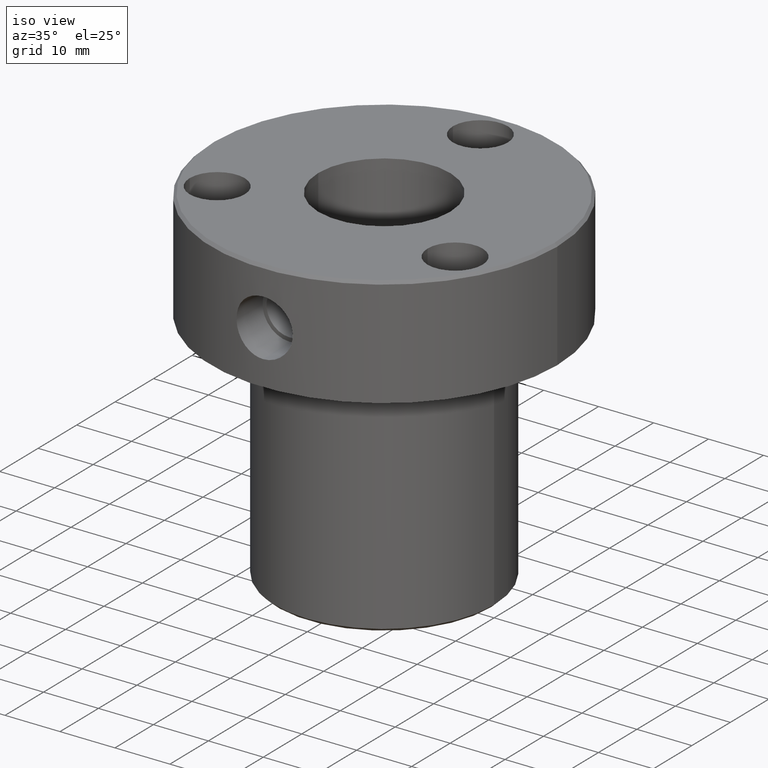
[diagram: clean part render]
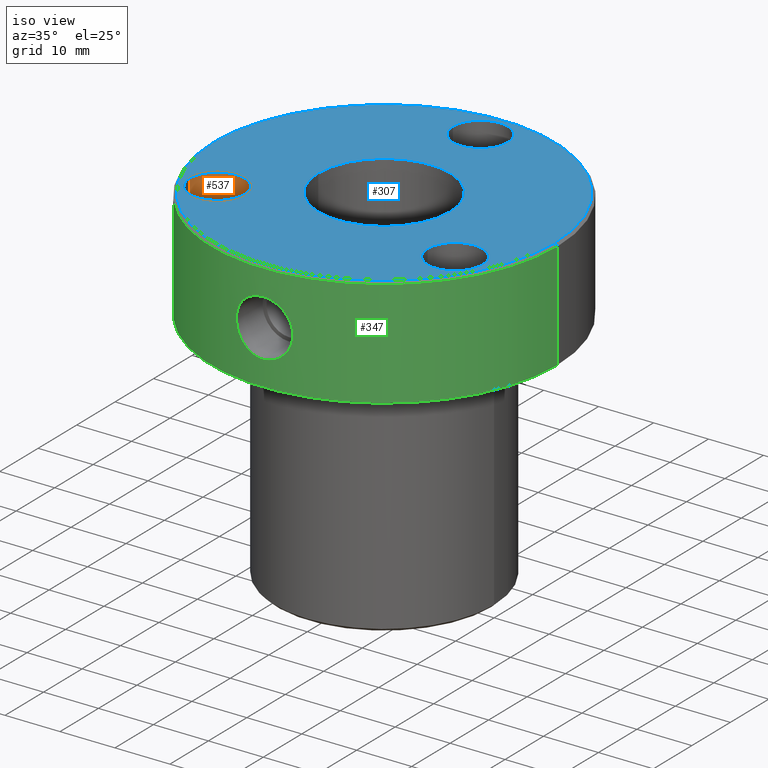
[diagram: same view with three faces highlighted in distinct colors, each labeled with its STEP entity id]
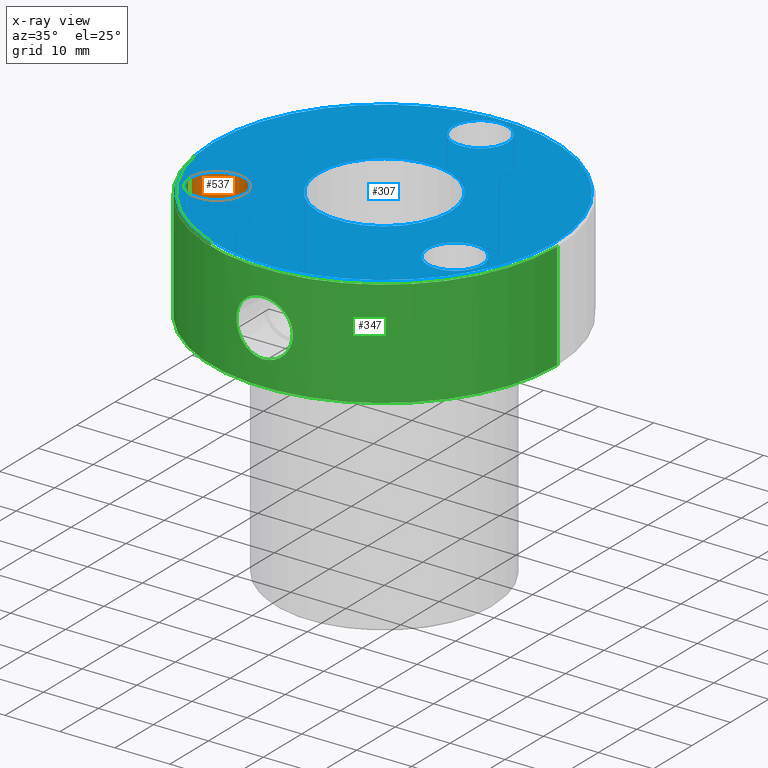
[diagram: x-ray of the same camera — body ghosted, the three highlighted faces saturated]
A machine part, iso view with three faces highlighted in distinct colors.
The next image is the same camera in x-ray (body ghosted, the three faces saturated) — at least one of them is partly hidden behind the body in this view.
Their STEP definitions:

[orange] entity #537 — the highlighted cylindrical surface (edge-blend (fillet) strip) has radius 5 mm, axis along (-0, -0, 1).
#18 = EDGE_CURVE ( 'NONE', #1236, #1199, #418, .T. ) ;
#92 = VECTOR ( 'NONE', #219, 1000.000000000000000 ) ;
#153 = CYLINDRICAL_SURFACE ( 'NONE', #1053, 4.999999999999997335 ) ;
#183 = CARTESIAN_POINT ( 'NONE',  ( -26.65063509461099756, -12.49999999999995381, -5.400000000000000355 ) ) ;
#193 = CARTESIAN_POINT ( 'NONE',  ( -21.65063509461100111, -12.49999999999995381, 0.000000000000000000 ) ) ;
#219 = DIRECTION ( 'NONE',  ( -0.000000000000000000, -0.000000000000000000, 1.000000000000000000 ) ) ;
#257 = CARTESIAN_POINT ( 'NONE',  ( -21.65063509461100111, -12.49999999999995381, -5.400000000000000355 ) ) ;
#296 = VERTEX_POINT ( 'NONE', #376 ) ;
#316 = DIRECTION ( 'NONE',  ( -0.000000000000000000, -0.000000000000000000, 1.000000000000000000 ) ) ;
#319 = VECTOR ( 'NONE', #420, 1000.000000000000000 ) ;
#341 = CIRCLE ( 'NONE', #869, 5.000000000000000888 ) ;
#376 = CARTESIAN_POINT ( 'NONE',  ( -26.65063509461100111, -12.49999999999995381, 0.000000000000000000 ) ) ;
#418 = CIRCLE ( 'NONE', #1177, 4.999999999999997335 ) ;
#420 = DIRECTION ( 'NONE',  ( -0.000000000000000000, -0.000000000000000000, 1.000000000000000000 ) ) ;
#537 = ADVANCED_FACE ( 'NONE', ( #902 ), #153, .F. ) ;
#563 = VERTEX_POINT ( 'NONE', #1018 ) ;
#577 = DIRECTION ( 'NONE',  ( 1.000000000000000000, 0.000000000000000000, 0.000000000000000000 ) ) ;
#598 = EDGE_CURVE ( 'NONE', #1199, #296, #719, .T. ) ;
#612 = CARTESIAN_POINT ( 'NONE',  ( -16.65063509461100466, -12.49999999999995381, -5.400000000000000355 ) ) ;
#643 = ORIENTED_EDGE ( 'NONE', *, *, #18, .F. ) ;
#705 = DIRECTION ( 'NONE',  ( 1.000000000000000000, 0.000000000000000000, 0.000000000000000000 ) ) ;
#719 = LINE ( 'NONE', #903, #319 ) ;
#869 = AXIS2_PLACEMENT_3D ( 'NONE', #193, #960, #577 ) ;
#886 = LINE ( 'NONE', #1182, #92 ) ;
#902 = FACE_OUTER_BOUND ( 'NONE', #1141, .T. ) ;
#903 = CARTESIAN_POINT ( 'NONE',  ( -26.65063509461099756, -12.49999999999995381, 0.000000000000000000 ) ) ;
#912 = CARTESIAN_POINT ( 'NONE',  ( -21.65063509461100111, -12.49999999999995381, 0.000000000000000000 ) ) ;
#921 = DIRECTION ( 'NONE',  ( -0.000000000000000000, -0.000000000000000000, 1.000000000000000000 ) ) ;
#960 = DIRECTION ( 'NONE',  ( -0.000000000000000000, -0.000000000000000000, 1.000000000000000000 ) ) ;
#1006 = EDGE_CURVE ( 'NONE', #1236, #563, #886, .T. ) ;
#1018 = CARTESIAN_POINT ( 'NONE',  ( -16.65063509461100111, -12.49999999999995381, 0.000000000000000000 ) ) ;
#1053 = AXIS2_PLACEMENT_3D ( 'NONE', #912, #316, #705 ) ;
#1075 = ORIENTED_EDGE ( 'NONE', *, *, #1006, .T. ) ;
#1128 = DIRECTION ( 'NONE',  ( 1.000000000000000000, 0.000000000000000000, 0.000000000000000000 ) ) ;
#1141 = EDGE_LOOP ( 'NONE', ( #1189, #643, #1075, #1184 ) ) ;
#1169 = EDGE_CURVE ( 'NONE', #563, #296, #341, .T. ) ;
#1177 = AXIS2_PLACEMENT_3D ( 'NONE', #257, #921, #1128 ) ;
#1182 = CARTESIAN_POINT ( 'NONE',  ( -16.65063509461100466, -12.49999999999995381, 0.000000000000000000 ) ) ;
#1184 = ORIENTED_EDGE ( 'NONE', *, *, #1169, .T. ) ;
#1189 = ORIENTED_EDGE ( 'NONE', *, *, #598, .F. ) ;
#1199 = VERTEX_POINT ( 'NONE', #183 ) ;
#1236 = VERTEX_POINT ( 'NONE', #612 ) ;

[blue] entity #307 — the highlighted planar face has unit normal (0, -0, 1).
#13 = CARTESIAN_POINT ( 'NONE',  ( 16.65063509461091584, -12.50000000000010125, 0.000000000000000000 ) ) ;
#22 = ORIENTED_EDGE ( 'NONE', *, *, #1221, .F. ) ;
#59 = CARTESIAN_POINT ( 'NONE',  ( 21.65063509461091940, -12.50000000000010125, 0.000000000000000000 ) ) ;
#64 = CARTESIAN_POINT ( 'NONE',  ( 0.000000000000000000, 25.00000000000001066, 0.000000000000000000 ) ) ;
#74 = CARTESIAN_POINT ( 'NONE',  ( -5.000000000000000888, 25.00000000000001066, 0.000000000000000000 ) ) ;
#91 = ORIENTED_EDGE ( 'NONE', *, *, #464, .F. ) ;
#102 = VERTEX_POINT ( 'NONE', #74 ) ;
#106 = FACE_BOUND ( 'NONE', #1025, .T. ) ;
#116 = CARTESIAN_POINT ( 'NONE',  ( 0.000000000000000000, 0.000000000000000000, 0.000000000000000000 ) ) ;
#126 = DIRECTION ( 'NONE',  ( 1.000000000000000000, 0.000000000000000000, 0.000000000000000000 ) ) ;
#185 = CIRCLE ( 'NONE', #1093, 5.000000000000000888 ) ;
#190 = DIRECTION ( 'NONE',  ( 1.000000000000000000, 0.000000000000000000, 0.000000000000000000 ) ) ;
#193 = CARTESIAN_POINT ( 'NONE',  ( -21.65063509461100111, -12.49999999999995381, 0.000000000000000000 ) ) ;
#196 = DIRECTION ( 'NONE',  ( 1.000000000000000000, 0.000000000000000000, 0.000000000000000000 ) ) ;
#201 = DIRECTION ( 'NONE',  ( 1.000000000000000000, 0.000000000000000000, 0.000000000000000000 ) ) ;
#203 = AXIS2_PLACEMENT_3D ( 'NONE', #472, #1158, #190 ) ;
#205 = FACE_BOUND ( 'NONE', #1047, .T. ) ;
#206 = AXIS2_PLACEMENT_3D ( 'NONE', #482, #870, #387 ) ;
#217 = VERTEX_POINT ( 'NONE', #913 ) ;
#269 = CARTESIAN_POINT ( 'NONE',  ( 0.000000000000000000, 0.000000000000000000, 0.000000000000000000 ) ) ;
#277 = VERTEX_POINT ( 'NONE', #13 ) ;
#289 = AXIS2_PLACEMENT_3D ( 'NONE', #685, #366, #201 ) ;
#296 = VERTEX_POINT ( 'NONE', #376 ) ;
#298 = DIRECTION ( 'NONE',  ( 0.000000000000000000, 0.000000000000000000, -1.000000000000000000 ) ) ;
#303 = DIRECTION ( 'NONE',  ( -0.000000000000000000, -0.000000000000000000, 1.000000000000000000 ) ) ;
#307 = ADVANCED_FACE ( 'NONE', ( #205, #667, #106, #682, #777 ), #1055, .T. ) ;
#341 = CIRCLE ( 'NONE', #869, 5.000000000000000888 ) ;
#343 = ORIENTED_EDGE ( 'NONE', *, *, #1169, .F. ) ;
#344 = ORIENTED_EDGE ( 'NONE', *, *, #936, .F. ) ;
#351 = ORIENTED_EDGE ( 'NONE', *, *, #1156, .T. ) ;
#365 = CARTESIAN_POINT ( 'NONE',  ( -30.99999999999998579, 0.000000000000000000, 0.000000000000000000 ) ) ;
#366 = DIRECTION ( 'NONE',  ( -0.000000000000000000, -0.000000000000000000, 1.000000000000000000 ) ) ;
#376 = CARTESIAN_POINT ( 'NONE',  ( -26.65063509461100111, -12.49999999999995381, 0.000000000000000000 ) ) ;
#387 = DIRECTION ( 'NONE',  ( 1.000000000000000000, 0.000000000000000000, 0.000000000000000000 ) ) ;
#428 = DIRECTION ( 'NONE',  ( -0.000000000000000000, -0.000000000000000000, 1.000000000000000000 ) ) ;
#445 = DIRECTION ( 'NONE',  ( 1.000000000000000000, 0.000000000000000000, 0.000000000000000000 ) ) ;
#464 = EDGE_CURVE ( 'NONE', #217, #102, #185, .T. ) ;
#465 = ORIENTED_EDGE ( 'NONE', *, *, #1210, .T. ) ;
#472 = CARTESIAN_POINT ( 'NONE',  ( 0.000000000000000000, 0.000000000000000000, 0.000000000000000000 ) ) ;
#479 = EDGE_CURVE ( 'NONE', #750, #1057, #1215, .T. ) ;
#482 = CARTESIAN_POINT ( 'NONE',  ( 0.000000000000000000, 25.00000000000001066, 0.000000000000000000 ) ) ;
#483 = CIRCLE ( 'NONE', #1194, 5.000000000000000888 ) ;
#490 = DIRECTION ( 'NONE',  ( 0.000000000000000000, 0.000000000000000000, -1.000000000000000000 ) ) ;
#498 = ORIENTED_EDGE ( 'NONE', *, *, #1198, .T. ) ;
#500 = CARTESIAN_POINT ( 'NONE',  ( 12.00000000000000178, 1.469576158976824144E-15, 0.000000000000000000 ) ) ;
#504 = CIRCLE ( 'NONE', #568, 12.00000000000000178 ) ;
#546 = VERTEX_POINT ( 'NONE', #994 ) ;
#556 = EDGE_LOOP ( 'NONE', ( #351, #465 ) ) ;
#559 = CARTESIAN_POINT ( 'NONE',  ( 30.99999999999998579, 3.827021247335478113E-15, 0.000000000000000000 ) ) ;
#563 = VERTEX_POINT ( 'NONE', #1018 ) ;
#568 = AXIS2_PLACEMENT_3D ( 'NONE', #1162, #298, #943 ) ;
#573 = EDGE_LOOP ( 'NONE', ( #992, #498 ) ) ;
#577 = DIRECTION ( 'NONE',  ( 1.000000000000000000, 0.000000000000000000, 0.000000000000000000 ) ) ;
#628 = CIRCLE ( 'NONE', #1152, 5.000000000000000888 ) ;
#652 = AXIS2_PLACEMENT_3D ( 'NONE', #269, #490, #1046 ) ;
#667 = FACE_BOUND ( 'NONE', #1045, .T. ) ;
#669 = AXIS2_PLACEMENT_3D ( 'NONE', #819, #834, #445 ) ;
#682 = FACE_BOUND ( 'NONE', #556, .T. ) ;
#685 = CARTESIAN_POINT ( 'NONE',  ( 21.65063509461091940, -12.50000000000010125, 0.000000000000000000 ) ) ;
#731 = DIRECTION ( 'NONE',  ( 1.000000000000000000, 0.000000000000000000, 0.000000000000000000 ) ) ;
#737 = DIRECTION ( 'NONE',  ( -0.000000000000000000, -0.000000000000000000, 1.000000000000000000 ) ) ;
#750 = VERTEX_POINT ( 'NONE', #365 ) ;
#777 = FACE_OUTER_BOUND ( 'NONE', #573, .T. ) ;
#819 = CARTESIAN_POINT ( 'NONE',  ( 0.000000000000000000, 0.000000000000000000, 0.000000000000000000 ) ) ;
#825 = AXIS2_PLACEMENT_3D ( 'NONE', #116, #1244, #196 ) ;
#834 = DIRECTION ( 'NONE',  ( -0.000000000000000000, -0.000000000000000000, 1.000000000000000000 ) ) ;
#845 = ORIENTED_EDGE ( 'NONE', *, *, #1205, .F. ) ;
#869 = AXIS2_PLACEMENT_3D ( 'NONE', #193, #960, #577 ) ;
#870 = DIRECTION ( 'NONE',  ( -0.000000000000000000, -0.000000000000000000, 1.000000000000000000 ) ) ;
#906 = ORIENTED_EDGE ( 'NONE', *, *, #991, .F. ) ;
#913 = CARTESIAN_POINT ( 'NONE',  ( 5.000000000000000888, 25.00000000000001066, 0.000000000000000000 ) ) ;
#936 = EDGE_CURVE ( 'NONE', #546, #277, #628, .T. ) ;
#943 = DIRECTION ( 'NONE',  ( -1.000000000000000000, 0.000000000000000000, 0.000000000000000000 ) ) ;
#952 = CIRCLE ( 'NONE', #652, 12.00000000000000178 ) ;
#960 = DIRECTION ( 'NONE',  ( -0.000000000000000000, -0.000000000000000000, 1.000000000000000000 ) ) ;
#979 = CARTESIAN_POINT ( 'NONE',  ( -21.65063509461100111, -12.49999999999995381, 0.000000000000000000 ) ) ;
#991 = EDGE_CURVE ( 'NONE', #296, #563, #483, .T. ) ;
#992 = ORIENTED_EDGE ( 'NONE', *, *, #479, .T. ) ;
#994 = CARTESIAN_POINT ( 'NONE',  ( 26.65063509461091940, -12.50000000000010125, 0.000000000000000000 ) ) ;
#1002 = VERTEX_POINT ( 'NONE', #500 ) ;
#1012 = CIRCLE ( 'NONE', #289, 5.000000000000000888 ) ;
#1018 = CARTESIAN_POINT ( 'NONE',  ( -16.65063509461100111, -12.49999999999995381, 0.000000000000000000 ) ) ;
#1025 = EDGE_LOOP ( 'NONE', ( #91, #845 ) ) ;
#1045 = EDGE_LOOP ( 'NONE', ( #344, #22 ) ) ;
#1046 = DIRECTION ( 'NONE',  ( -1.000000000000000000, 0.000000000000000000, 0.000000000000000000 ) ) ;
#1047 = EDGE_LOOP ( 'NONE', ( #343, #906 ) ) ;
#1055 = PLANE ( 'NONE',  #203 ) ;
#1056 = CIRCLE ( 'NONE', #825, 30.99999999999998579 ) ;
#1057 = VERTEX_POINT ( 'NONE', #559 ) ;
#1085 = CARTESIAN_POINT ( 'NONE',  ( -12.00000000000000178, 0.000000000000000000, 0.000000000000000000 ) ) ;
#1093 = AXIS2_PLACEMENT_3D ( 'NONE', #64, #428, #1115 ) ;
#1095 = CIRCLE ( 'NONE', #206, 5.000000000000000888 ) ;
#1115 = DIRECTION ( 'NONE',  ( 1.000000000000000000, 0.000000000000000000, 0.000000000000000000 ) ) ;
#1152 = AXIS2_PLACEMENT_3D ( 'NONE', #59, #737, #731 ) ;
#1156 = EDGE_CURVE ( 'NONE', #1248, #1002, #952, .T. ) ;
#1158 = DIRECTION ( 'NONE',  ( 0.000000000000000000, -0.000000000000000000, 1.000000000000000000 ) ) ;
#1162 = CARTESIAN_POINT ( 'NONE',  ( 0.000000000000000000, 0.000000000000000000, 0.000000000000000000 ) ) ;
#1169 = EDGE_CURVE ( 'NONE', #563, #296, #341, .T. ) ;
#1194 = AXIS2_PLACEMENT_3D ( 'NONE', #979, #303, #126 ) ;
#1198 = EDGE_CURVE ( 'NONE', #1057, #750, #1056, .T. ) ;
#1205 = EDGE_CURVE ( 'NONE', #102, #217, #1095, .T. ) ;
#1210 = EDGE_CURVE ( 'NONE', #1002, #1248, #504, .T. ) ;
#1215 = CIRCLE ( 'NONE', #669, 30.99999999999998579 ) ;
#1221 = EDGE_CURVE ( 'NONE', #277, #546, #1012, .T. ) ;
#1244 = DIRECTION ( 'NONE',  ( -0.000000000000000000, -0.000000000000000000, 1.000000000000000000 ) ) ;
#1248 = VERTEX_POINT ( 'NONE', #1085 ) ;

[green] entity #347 — the highlighted cylindrical surface (partial cylindrical patch) has radius 31.5 mm, axis along (-0, -0, 1).
#8 = CARTESIAN_POINT ( 'NONE',  ( 4.867664789323016272, -31.12190052561226139, -8.589729848178704330 ) ) ;
#15 = CARTESIAN_POINT ( 'NONE',  ( 3.859207426211678449, -31.26288628882880616, -6.856458993284471504 ) ) ;
#17 = CARTESIAN_POINT ( 'NONE',  ( -4.080131788154743866, -31.23519944238895718, -7.113521688492904893 ) ) ;
#21 = CARTESIAN_POINT ( 'NONE',  ( -1.334519425968438533, -31.47343701898237711, -5.272292468420128664 ) ) ;
#29 = CARTESIAN_POINT ( 'NONE',  ( -4.614207509948417218, -31.16048382452505550, -12.52398808746668379 ) ) ;
#33 = ORIENTED_EDGE ( 'NONE', *, *, #87, .F. ) ;
#38 = CARTESIAN_POINT ( 'NONE',  ( -4.965651398854145526, -31.10621741704731136, -8.912339386753414416 ) ) ;
#39 = LINE ( 'NONE', #329, #946 ) ;
#40 = AXIS2_PLACEMENT_3D ( 'NONE', #101, #486, #859 ) ;
#57 = CARTESIAN_POINT ( 'NONE',  ( -9.772567479587839719E-14, -31.50000000000020961, -5.106626999998714389 ) ) ;
#70 = CIRCLE ( 'NONE', #502, 31.50000000000000000 ) ;
#87 = EDGE_CURVE ( 'NONE', #96, #949, #561, .T. ) ;
#88 = AXIS2_PLACEMENT_3D ( 'NONE', #1048, #766, #184 ) ;
#96 = VERTEX_POINT ( 'NONE', #265 ) ;
#97 = CARTESIAN_POINT ( 'NONE',  ( 5.130657840474292186, -31.07935569053308811, -9.909852961027835860 ) ) ;
#101 = CARTESIAN_POINT ( 'NONE',  ( 0.000000000000000000, 0.000000000000000000, 0.000000000000000000 ) ) ;
#109 = CARTESIAN_POINT ( 'NONE',  ( 1.336415367724157477, -31.47340445795097352, -15.22751008621549573 ) ) ;
#119 = CARTESIAN_POINT ( 'NONE',  ( 2.576464478240120037, -31.39570636234278922, -14.71060931308867126 ) ) ;
#122 = CARTESIAN_POINT ( 'NONE',  ( -5.130717678206083932, -31.07934581213399738, -10.08065437731778324 ) ) ;
#136 = DIRECTION ( 'NONE',  ( -0.000000000000000000, -0.000000000000000000, 1.000000000000000000 ) ) ;
#140 = CARTESIAN_POINT ( 'NONE',  ( -2.280086928615740138, -31.41893068276825574, -5.629928619322755345 ) ) ;
#166 = ORIENTED_EDGE ( 'NONE', *, *, #186, .T. ) ;
#184 = DIRECTION ( 'NONE',  ( 1.000000000000000000, 0.000000000000000000, 0.000000000000000000 ) ) ;
#186 = EDGE_CURVE ( 'NONE', #552, #634, #626, .T. ) ;
#191 = CARTESIAN_POINT ( 'NONE',  ( 2.571297194215712789, -31.39614878406548470, -5.786216701329178314 ) ) ;
#198 = VERTEX_POINT ( 'NONE', #757 ) ;
#207 = ORIENTED_EDGE ( 'NONE', *, *, #1235, .F. ) ;
#215 = CARTESIAN_POINT ( 'NONE',  ( -1.655205305049651354, -31.45804026077873772, -5.369816319215269473 ) ) ;
#220 = CARTESIAN_POINT ( 'NONE',  ( -2.275449511140111625, -31.41924167644154053, -14.87216287977717144 ) ) ;
#227 = CARTESIAN_POINT ( 'NONE',  ( -2.993104610847331593, -31.35778592654167696, -6.069120576231695097 ) ) ;
#235 = CARTESIAN_POINT ( 'NONE',  ( 1.331074546105040390, -31.47228005148380703, -5.279836242022051707 ) ) ;
#247 = EDGE_LOOP ( 'NONE', ( #33, #207 ) ) ;
#254 = EDGE_CURVE ( 'NONE', #634, #829, #457, .T. ) ;
#265 = CARTESIAN_POINT ( 'NONE',  ( 3.469453123382869688E-15, -31.50000000000000000, -15.39337299999999509 ) ) ;
#291 = CARTESIAN_POINT ( 'NONE',  ( 5.089441580894637163, -31.08613620900053220, -10.92300633721116832 ) ) ;
#304 = CARTESIAN_POINT ( 'NONE',  ( -4.451694874726374707, -31.18441232983012412, -7.670897753639112082 ) ) ;
#308 = CARTESIAN_POINT ( 'NONE',  ( 5.122465983066386563, -31.08071141821243089, -10.58768122473574103 ) ) ;
#310 = CARTESIAN_POINT ( 'NONE',  ( -2.576434490117962550, -31.39569727739237948, -14.71050425106655624 ) ) ;
#313 = CARTESIAN_POINT ( 'NONE',  ( -3.866491077670896281, -31.26272088466694399, -13.64782522884890703 ) ) ;
#326 = DIRECTION ( 'NONE',  ( 1.000000000000000000, 0.000000000000000000, 0.000000000000000000 ) ) ;
#329 = CARTESIAN_POINT ( 'NONE',  ( -31.50000000000000000, 3.857637417314162689E-15, 0.000000000000000000 ) ) ;
#347 = ADVANCED_FACE ( 'NONE', ( #970, #956 ), #781, .T. ) ;
#349 = CARTESIAN_POINT ( 'NONE',  ( 31.50000000000000000, 0.000000000000000000, -20.00000000000000000 ) ) ;
#362 = CARTESIAN_POINT ( 'NONE',  ( 31.50000000000000000, 0.000000000000000000, 0.000000000000000000 ) ) ;
#372 = CARTESIAN_POINT ( 'NONE',  ( 4.082377604487185785, -31.23490388621969061, -13.38350829592921087 ) ) ;
#385 = CARTESIAN_POINT ( 'NONE',  ( 4.072356555082452090, -31.23583604059677299, -7.116759613591058020 ) ) ;
#386 = EDGE_CURVE ( 'NONE', #552, #198, #39, .T. ) ;
#393 = CARTESIAN_POINT ( 'NONE',  ( -3.127390646994665957, -31.34463980152736440, -6.169051752806164579 ) ) ;
#399 = CARTESIAN_POINT ( 'NONE',  ( -4.080978841796701673, -31.23509399249391549, -13.38556862998713903 ) ) ;
#405 = CARTESIAN_POINT ( 'NONE',  ( -0.1675630498953195602, -31.49999999999999289, -15.39337299999998798 ) ) ;
#407 = CARTESIAN_POINT ( 'NONE',  ( 2.275950067283664335, -31.41919755906950229, -5.628144779923813346 ) ) ;
#411 = CARTESIAN_POINT ( 'NONE',  ( -5.098402914937243402, -31.08473478902125464, -10.91910798902401858 ) ) ;
#457 = LINE ( 'NONE', #362, #1197 ) ;
#469 = CARTESIAN_POINT ( 'NONE',  ( 4.610983382438159417, -31.16096412298885809, -7.969321119021823385 ) ) ;
#471 = ORIENTED_EDGE ( 'NONE', *, *, #386, .F. ) ;
#480 = CARTESIAN_POINT ( 'NONE',  ( 5.064819551378900719, -31.09017036019769264, -11.08896700139191793 ) ) ;
#486 = DIRECTION ( 'NONE',  ( -0.000000000000000000, -0.000000000000000000, 1.000000000000000000 ) ) ;
#494 = CARTESIAN_POINT ( 'NONE',  ( 3.134681991975262427, -31.34489298127002144, -14.33574776624093161 ) ) ;
#496 = CARTESIAN_POINT ( 'NONE',  ( -1.655634719621374096, -31.45799249277633791, -15.12984270095671846 ) ) ;
#502 = AXIS2_PLACEMENT_3D ( 'NONE', #901, #832, #326 ) ;
#508 = CARTESIAN_POINT ( 'NONE',  ( -4.454254645784785360, -31.18405202307143753, -12.82489809447089613 ) ) ;
#552 = VERTEX_POINT ( 'NONE', #597 ) ;
#561 = B_SPLINE_CURVE_WITH_KNOTS ( 'NONE', 3,
 ( #581, #1173, #592, #109, #575, #1154, #119, #494, #1165, #1256, #372, #787, #566, #951, #855, #480, #291, #308, #684, #97, #762, #867, #8, #469, #873, #671, #385, #15, #779, #1161, #1059, #191, #407, #976, #623, #235, #1082, #646, #842, #57 ),
 .UNSPECIFIED., .F., .F.,
 ( 4, 2, 2, 2, 2, 2, 2, 2, 2, 2, 2, 2, 2, 2, 2, 2, 2, 2, 2, 4 ),
 ( 0.004162008923113693151, 0.005167744192718995433, 0.006173479462324296847, 0.007179214731929599996, 0.008184950001534902278, 0.009190685271140204560, 0.01019642054074550858, 0.01120215581035080912, 0.01170502344515346113, 0.01220789107995611314, 0.01321362634956141716, 0.01421936161916671944, 0.01522509688877202345, 0.01572796452357467373, 0.01623083215837732574, 0.01723656742798263322, 0.01824230269758793724, 0.01874517033239058925, 0.01924803796719324472, 0.02025377323679854874 ),
 .UNSPECIFIED. ) ;
#566 = CARTESIAN_POINT ( 'NONE',  ( 4.610980735617624227, -31.16096817160007149, -12.53107147698502288 ) ) ;
#575 = CARTESIAN_POINT ( 'NONE',  ( 1.657396898507847105, -31.45789325696875238, -15.12919500493183378 ) ) ;
#581 = CARTESIAN_POINT ( 'NONE',  ( 3.469453123382869688E-15, -31.50000000000000000, -15.39337299999999509 ) ) ;
#592 = CARTESIAN_POINT ( 'NONE',  ( 0.6698377073421232231, -31.49464258655239490, -15.36072116753062033 ) ) ;
#597 = CARTESIAN_POINT ( 'NONE',  ( -31.50000000000000000, 3.857637417314162689E-15, -20.00000000000000000 ) ) ;
#599 = CARTESIAN_POINT ( 'NONE',  ( -4.868424305443068256, -31.12178013916284414, -8.592074121464550629 ) ) ;
#605 = CARTESIAN_POINT ( 'NONE',  ( -0.6714663925119007670, -31.49329104503225452, -15.35194756755903001 ) ) ;
#618 = CARTESIAN_POINT ( 'NONE',  ( -9.772567479587839719E-14, -31.50000000000020961, -5.106626999998714389 ) ) ;
#623 = CARTESIAN_POINT ( 'NONE',  ( 1.654260685751130833, -31.45694824152356261, -5.378348575345545335 ) ) ;
#626 = CIRCLE ( 'NONE', #88, 31.50000000000000000 ) ;
#634 = VERTEX_POINT ( 'NONE', #349 ) ;
#646 = CARTESIAN_POINT ( 'NONE',  ( 0.6701198474174928643, -31.49460617425014419, -5.139513848346278557 ) ) ;
#671 = CARTESIAN_POINT ( 'NONE',  ( 4.173563541805559218, -31.22243177385723101, -7.253570568143165254 ) ) ;
#684 = CARTESIAN_POINT ( 'NONE',  ( 5.130837226589495259, -31.07932607631504496, -10.41733963596846557 ) ) ;
#690 = CARTESIAN_POINT ( 'NONE',  ( -5.122515217600781767, -31.08070329713656577, -9.913028021884798591 ) ) ;
#698 = CARTESIAN_POINT ( 'NONE',  ( -0.3353667130378119587, -31.49866310069631581, -15.38516502314590717 ) ) ;
#702 = CARTESIAN_POINT ( 'NONE',  ( -3.390222829753240852, -31.31794788186031298, -14.12535131313222081 ) ) ;
#736 = ORIENTED_EDGE ( 'NONE', *, *, #254, .T. ) ;
#757 = CARTESIAN_POINT ( 'NONE',  ( -31.50000000000000000, 3.857637417314162689E-15, -0.5000000000000005551 ) ) ;
#762 = CARTESIAN_POINT ( 'NONE',  ( 5.097562165116699795, -31.08487155453376261, -9.576089725178830392 ) ) ;
#766 = DIRECTION ( 'NONE',  ( -0.000000000000000000, -0.000000000000000000, 1.000000000000000000 ) ) ;
#779 = CARTESIAN_POINT ( 'NONE',  ( 3.746879213934935837, -31.27658873943607531, -6.732282321489491572 ) ) ;
#781 = CYLINDRICAL_SURFACE ( 'NONE', #40, 31.50000000000000000 ) ;
#784 = CARTESIAN_POINT ( 'NONE',  ( -1.335606384995722706, -31.47340735662041666, -15.22752269674729142 ) ) ;
#787 = CARTESIAN_POINT ( 'NONE',  ( 4.453239858586508504, -31.18418962309101161, -12.82638164466412967 ) ) ;
#790 = CARTESIAN_POINT ( 'NONE',  ( -5.130896919631678266, -31.07931622180228359, -10.58317388585338037 ) ) ;
#794 = CARTESIAN_POINT ( 'NONE',  ( -0.6770406131236045288, -31.49444071410571055, -5.140538297664423162 ) ) ;
#802 = CARTESIAN_POINT ( 'NONE',  ( -0.8401433878439314995, -31.48922772712464635, -15.32676051504670411 ) ) ;
#810 = B_SPLINE_CURVE_WITH_KNOTS ( 'NONE', 3,
 ( #618, #996, #794, #21, #215, #140, #897, #227, #393, #1079, #1098, #876, #17, #304, #1183, #599, #38, #989, #1195, #690, #122, #790, #411, #892, #974, #29, #508, #399, #313, #702, #1091, #310, #220, #496, #784, #802, #605, #698, #405, #1001 ),
 .UNSPECIFIED., .F., .F.,
 ( 4, 2, 2, 2, 2, 2, 2, 2, 2, 2, 2, 2, 2, 2, 2, 2, 2, 2, 2, 4 ),
 ( 0.02025377323679855221, 0.02125885092952007824, 0.02226392862224160080, 0.02326900631496312682, 0.02377154516132388984, 0.02427408400768465285, 0.02527916170040617888, 0.02628423939312770491, 0.02728931708584923094, 0.02779185593220999048, 0.02829439477857075003, 0.02929947247129226565, 0.03030455016401378127, 0.03130962785673530036, 0.03231470554945681251, 0.03331978324217832466, 0.03432486093489984375, 0.03532993862762136283, 0.03583247747398211891, 0.03633501632034287498 ),
 .UNSPECIFIED. ) ;
#829 = VERTEX_POINT ( 'NONE', #1078 ) ;
#832 = DIRECTION ( 'NONE',  ( 0.000000000000000000, 0.000000000000000000, -1.000000000000000000 ) ) ;
#842 = CARTESIAN_POINT ( 'NONE',  ( 0.3366100973040669353, -31.50000000000000000, -5.106626999999975602 ) ) ;
#855 = CARTESIAN_POINT ( 'NONE',  ( 4.967041030467374441, -31.10599401816686793, -11.58183657534789646 ) ) ;
#859 = DIRECTION ( 'NONE',  ( 1.000000000000000000, 0.000000000000000000, 0.000000000000000000 ) ) ;
#863 = DIRECTION ( 'NONE',  ( -0.000000000000000000, -0.000000000000000000, 1.000000000000000000 ) ) ;
#867 = CARTESIAN_POINT ( 'NONE',  ( 4.966905104410310301, -31.10601603022917061, -8.917466357430962276 ) ) ;
#873 = CARTESIAN_POINT ( 'NONE',  ( 4.453635683173367887, -31.18414089315583837, -7.674024176918996076 ) ) ;
#875 = EDGE_CURVE ( 'NONE', #829, #198, #70, .T. ) ;
#876 = CARTESIAN_POINT ( 'NONE',  ( -3.868766672552418129, -31.26243386244336619, -6.854851957125377204 ) ) ;
#892 = CARTESIAN_POINT ( 'NONE',  ( -4.966712007347240387, -31.10604798142800220, -11.58406843877422432 ) ) ;
#893 = ORIENTED_EDGE ( 'NONE', *, *, #875, .T. ) ;
#897 = CARTESIAN_POINT ( 'NONE',  ( -2.576827999614311970, -31.39566229856551161, -5.789751088459638595 ) ) ;
#901 = CARTESIAN_POINT ( 'NONE',  ( 0.000000000000000000, 0.000000000000000000, -0.5000000000000005551 ) ) ;
#944 = EDGE_LOOP ( 'NONE', ( #471, #166, #736, #893 ) ) ;
#946 = VECTOR ( 'NONE', #136, 1000.000000000000000 ) ;
#949 = VERTEX_POINT ( 'NONE', #950 ) ;
#950 = CARTESIAN_POINT ( 'NONE',  ( -9.772567479587839719E-14, -31.50000000000020961, -5.106626999998714389 ) ) ;
#951 = CARTESIAN_POINT ( 'NONE',  ( 4.869390834944940849, -31.12163417354981831, -11.90570945242667555 ) ) ;
#956 = FACE_BOUND ( 'NONE', #247, .T. ) ;
#970 = FACE_OUTER_BOUND ( 'NONE', #944, .T. ) ;
#974 = CARTESIAN_POINT ( 'NONE',  ( -4.869437043423324063, -31.12162023422767021, -11.90486274772561437 ) ) ;
#976 = CARTESIAN_POINT ( 'NONE',  ( 1.812282648736991186, -31.44820523642388821, -5.435232141050023280 ) ) ;
#989 = CARTESIAN_POINT ( 'NONE',  ( -5.064493604089504331, -31.09022384105695735, -9.408808797311811745 ) ) ;
#996 = CARTESIAN_POINT ( 'NONE',  ( -0.3363900125311793943, -31.50000000000000711, -5.106627000000005800 ) ) ;
#1001 = CARTESIAN_POINT ( 'NONE',  ( 3.469453123382869688E-15, -31.50000000000000000, -15.39337299999999509 ) ) ;
#1048 = CARTESIAN_POINT ( 'NONE',  ( 0.000000000000000000, 0.000000000000000000, -20.00000000000000000 ) ) ;
#1059 = CARTESIAN_POINT ( 'NONE',  ( 3.133698975952346366, -31.34501010464462567, -6.163299309523029734 ) ) ;
#1078 = CARTESIAN_POINT ( 'NONE',  ( 31.50000000000000000, 0.000000000000000000, -0.5000000000000005551 ) ) ;
#1079 = CARTESIAN_POINT ( 'NONE',  ( -3.386887148940125769, -31.31766293941403489, -6.382778049131897724 ) ) ;
#1082 = CARTESIAN_POINT ( 'NONE',  ( 1.165729546598521571, -31.47885630537491153, -5.238291229756740996 ) ) ;
#1091 = CARTESIAN_POINT ( 'NONE',  ( -3.132072014495783208, -31.34514232080539387, -14.33762505908508444 ) ) ;
#1098 = CARTESIAN_POINT ( 'NONE',  ( -3.512639453559862623, -31.30376408216540440, -6.497194538890540549 ) ) ;
#1154 = CARTESIAN_POINT ( 'NONE',  ( 2.275906060090903793, -31.41920215810174000, -14.87188786386862738 ) ) ;
#1161 = CARTESIAN_POINT ( 'NONE',  ( 3.392932673877273153, -31.31763777728264486, -6.377295305653123414 ) ) ;
#1165 = CARTESIAN_POINT ( 'NONE',  ( 3.392577882394762323, -31.31768352007677336, -14.12313902032865975 ) ) ;
#1173 = CARTESIAN_POINT ( 'NONE',  ( 0.3353453576430204808, -31.49999999999999289, -15.39337299999999864 ) ) ;
#1183 = CARTESIAN_POINT ( 'NONE',  ( -4.612496138182724970, -31.16073865657662623, -7.972473504924429299 ) ) ;
#1195 = CARTESIAN_POINT ( 'NONE',  ( -5.089515053184927140, -31.08612417337664269, -9.577531140353670480 ) ) ;
#1197 = VECTOR ( 'NONE', #863, 1000.000000000000000 ) ;
#1235 = EDGE_CURVE ( 'NONE', #949, #96, #810, .T. ) ;
#1256 = CARTESIAN_POINT ( 'NONE',  ( 3.866415528860177364, -31.26272087822797729, -13.64775127927988940 ) ) ;